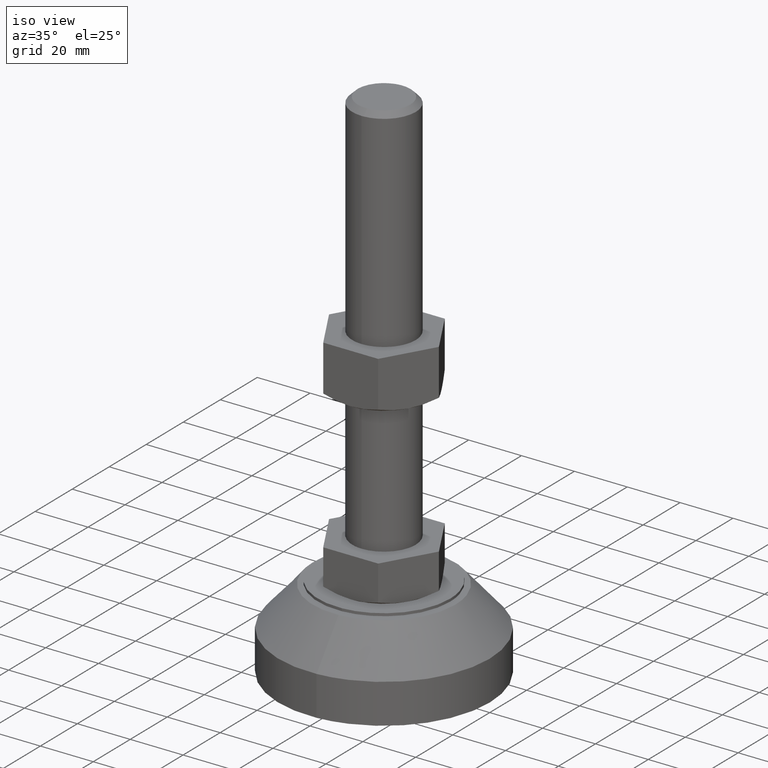
[diagram: clean part render]
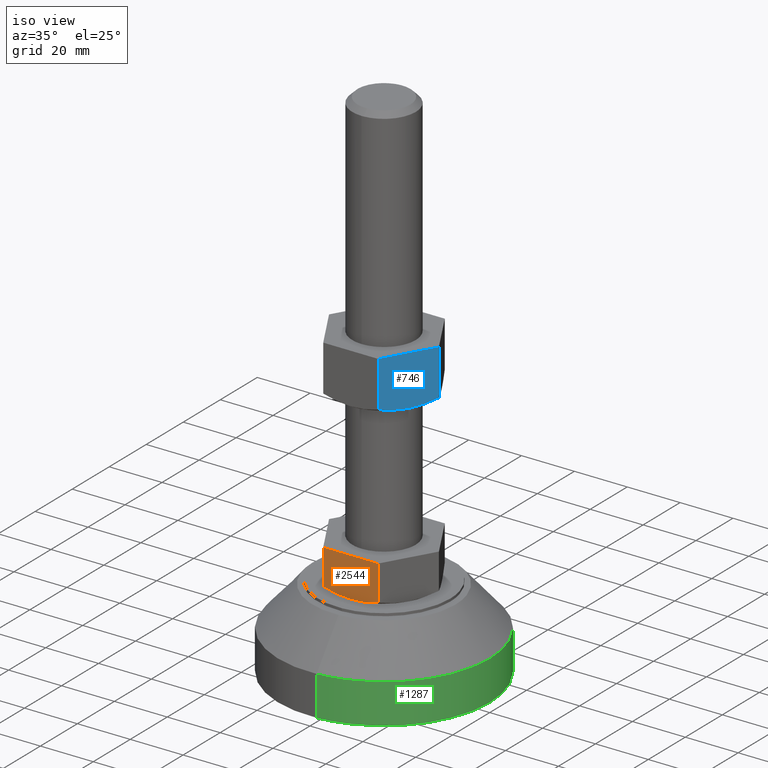
[diagram: same view with three faces highlighted in distinct colors, each labeled with its STEP entity id]
A machine part, iso view with three faces highlighted in distinct colors.
Their STEP definitions:

[orange] entity #2544 — the highlighted face is a freeform B-spline surface patch.
#2202=CARTESIAN_POINT('',(10.392304845413500,-18.0,46.500000000000000));
#2203=VERTEX_POINT('',#2202);
#2232=CARTESIAN_POINT('',(-10.392304845412919,-18.0,46.500000000000000));
#2233=VERTEX_POINT('',#2232);
#2239=CARTESIAN_POINT('',(-10.392304845412919,-18.0,46.500000000000000));
#2240=CARTESIAN_POINT('',(10.392304845413500,-18.0,46.500000000000000));
#2241=QUASI_UNIFORM_CURVE('',1,(#2239,#2240),.UNSPECIFIED.,.F.,.U.);
#2242=EDGE_CURVE('',#2233,#2203,#2241,.T.);
#2281=CARTESIAN_POINT('',(10.392304845915540,-18.0,33.107695154885853));
#2282=VERTEX_POINT('',#2281);
#2283=CARTESIAN_POINT('',(10.392304845413500,-18.0,46.500000000000000));
#2284=CARTESIAN_POINT('',(10.392304845915540,-18.0,33.107695154885853));
#2285=QUASI_UNIFORM_CURVE('',1,(#2283,#2284),.UNSPECIFIED.,.F.,.U.);
#2286=EDGE_CURVE('',#2203,#2282,#2285,.T.);
#2457=CARTESIAN_POINT('',(-10.392304845915540,-18.0,33.107695154885853));
#2458=VERTEX_POINT('',#2457);
#2474=CARTESIAN_POINT('',(-10.392304845412919,-18.0,46.500000000000000));
#2475=CARTESIAN_POINT('',(-10.392304845915540,-18.0,33.107695154885853));
#2476=QUASI_UNIFORM_CURVE('',1,(#2474,#2475),.UNSPECIFIED.,.F.,.U.);
#2477=EDGE_CURVE('',#2233,#2458,#2476,.T.);
#2499=CARTESIAN_POINT('',(-11.430496059737900,-18.0,30.750750029072911));
#2500=CARTESIAN_POINT('',(-11.430496059737900,-18.0,47.249250373258441));
#2501=CARTESIAN_POINT('',(11.430496617224581,-18.0,30.750750029072911));
#2502=CARTESIAN_POINT('',(11.430496617224570,-18.0,47.249250373258441));
#2503=B_SPLINE_SURFACE_WITH_KNOTS('',1,1,((#2499,#2501),(#2500,#2502)),.UNSPECIFIED.,.F.,.F.,.U.,(2,2),(2,2),(0.0,16.498500344185530),(0.0,22.860992676962478),.UNSPECIFIED.);
#2504=CARTESIAN_POINT('',(0.0,-18.0,31.500000000000000));
#2505=VERTEX_POINT('',#2504);
#2506=CARTESIAN_POINT('',(10.392304845915540,-18.0,33.107695154885853));
#2507=CARTESIAN_POINT('',(9.552365412714201,-17.999999999999989,32.865225525945192));
#2508=CARTESIAN_POINT('',(8.706885854444762,-17.999999999999989,32.643141576923583));
#2509=CARTESIAN_POINT('',(7.002191554892256,-18.0,32.249514242695000));
#2510=CARTESIAN_POINT('',(6.142968135351366,-18.0,32.078002790374732));
#2511=CARTESIAN_POINT('',(4.841642848456144,-18.0,31.866694927164890));
#2512=CARTESIAN_POINT('',(4.187855880466216,-18.0,31.772537393078089));
#2513=CARTESIAN_POINT('',(3.528980108452165,-18.0,31.697104838794321));
#2514=CARTESIAN_POINT('',(3.088556391147677,-18.0,31.651133435580299));
#2515=CARTESIAN_POINT('',(2.867507010807920,-17.999999999999989,31.630286684960030));
#2516=CARTESIAN_POINT('',(1.762606343972523,-18.0,31.537492186740920));
#2517=CARTESIAN_POINT('',(0.881461942123003,-18.0,31.500088341323650));
#2518=CARTESIAN_POINT('',(0.002086760034195,-18.0,31.500000052523699));
#2519=CARTESIAN_POINT('',(0.001043378373513,-18.0,31.500000000405709));
#2520=CARTESIAN_POINT('',(6.800530E-010,-18.0,31.500000000922029));
#2521=B_SPLINE_CURVE_WITH_KNOTS('',3,(#2506,#2507,#2508,#2509,#2510,#2511,#2512,#2513,#2514,#2515,#2516,#2517,#2518,#2519,#2520),.UNSPECIFIED.,.F.,.U.,(4,2,2,1,2,2,2,4),(0.499851510324410,0.624851510324410,0.749851510324410,0.812351510324410,0.843601510324410,0.874851510324410,0.999851510324410,1.000000000000000),.UNSPECIFIED.);
#2522=EDGE_CURVE('',#2282,#2505,#2521,.T.);
#2523=ORIENTED_EDGE('',*,*,#2522,.F.);
#2524=ORIENTED_EDGE('',*,*,#2286,.F.);
#2525=ORIENTED_EDGE('',*,*,#2242,.F.);
#2526=ORIENTED_EDGE('',*,*,#2477,.T.);
#2527=CARTESIAN_POINT('',(0.0,-18.0,31.500000000000000));
#2528=CARTESIAN_POINT('',(-0.877281739031200,-18.0,31.500000435064571));
#2529=CARTESIAN_POINT('',(-1.751758808972357,-18.0,31.537211237835219));
#2530=CARTESIAN_POINT('',(-3.496415527605407,-17.999999999999989,31.682490794184250));
#2531=CARTESIAN_POINT('',(-4.366592789590045,-18.0,31.790591212908399));
#2532=CARTESIAN_POINT('',(-5.668263561115735,-18.0,32.000439372685797));
#2533=CARTESIAN_POINT('',(-6.101556352838448,-18.0,32.078315508831018));
#2534=CARTESIAN_POINT('',(-6.967029944061030,-17.999999999999989,32.248820908382342));
#2535=CARTESIAN_POINT('',(-7.399391557765683,-18.0,32.341490212594657));
#2536=CARTESIAN_POINT('',(-8.693811692549845,-18.0,32.639624696497272));
#2537=CARTESIAN_POINT('',(-9.546941696184733,-18.0,32.863659833846008));
#2538=CARTESIAN_POINT('',(-10.392304845915470,-18.0,33.107695154886017));
#2539=B_SPLINE_CURVE_WITH_KNOTS('',3,(#2527,#2528,#2529,#2530,#2531,#2532,#2533,#2534,#2535,#2536,#2537,#2538),.UNSPECIFIED.,.F.,.U.,(4,2,2,2,2,4),(0.0,0.124851510293799,0.249851510293799,0.312351510293799,0.374851510293799,0.499851510293799),.UNSPECIFIED.);
#2540=EDGE_CURVE('',#2505,#2458,#2539,.T.);
#2541=ORIENTED_EDGE('',*,*,#2540,.F.);
#2542=EDGE_LOOP('',(#2523,#2524,#2525,#2526,#2541));
#2543=FACE_OUTER_BOUND('',#2542,.T.);
#2544=ADVANCED_FACE('',(#2543),#2503,.F.);

[blue] entity #746 — the highlighted face is a freeform B-spline surface patch.
#239=CARTESIAN_POINT('',(15.588457267900051,-8.999999999872999,97.500000000000000));
#240=VERTEX_POINT('',#239);
#407=CARTESIAN_POINT('',(20.784609691077652,-4.392649E-010,99.107695154885903));
#408=VERTEX_POINT('',#407);
#422=CARTESIAN_POINT('',(15.588457267900051,-8.999999999872999,97.500000000000000));
#423=CARTESIAN_POINT('',(15.695598621979020,-8.814425731524946,97.500000043512642));
#424=CARTESIAN_POINT('',(15.802898686852240,-8.628576567509091,97.502209877790818));
#425=CARTESIAN_POINT('',(16.021138819715439,-8.250573569139444,97.511217426488457));
#426=CARTESIAN_POINT('',(16.131910806480779,-8.058710860006508,97.518151183915947));
#427=CARTESIAN_POINT('',(16.463404994942149,-7.484546083177598,97.545891086845145));
#428=CARTESIAN_POINT('',(16.683633298884669,-7.103099471484447,97.573655188440242));
#429=CARTESIAN_POINT('',(17.342114434970028,-5.962576687958942,97.683556322936766));
#430=CARTESIAN_POINT('',(17.778158339073730,-5.207326491720633,97.792364395414793));
#431=CARTESIAN_POINT('',(19.078526894263991,-2.955022085566172,98.212522526829602));
#432=CARTESIAN_POINT('',(19.935118637307479,-1.471361665270852,98.617241266323049));
#433=CARTESIAN_POINT('',(20.784609690716639,-1.909833E-010,99.107695154677572));
#434=B_SPLINE_CURVE_WITH_KNOTS('',3,(#422,#423,#424,#425,#426,#427,#428,#429,#430,#431,#432,#433),.UNSPECIFIED.,.F.,.U.,(4,2,2,2,2,4),(0.500936633666372,0.531250000000000,0.562500000000000,0.625000000000000,0.750000000000000,1.0),.UNSPECIFIED.);
#435=EDGE_CURVE('',#240,#408,#434,.T.);
#454=CARTESIAN_POINT('',(10.392304845413500,-18.0,99.107695154885803));
#455=VERTEX_POINT('',#454);
#475=CARTESIAN_POINT('',(10.392304845413500,-18.0,99.107695154885803));
#476=CARTESIAN_POINT('',(11.240738174233730,-16.530470367648821,98.617851943954250));
#477=CARTESIAN_POINT('',(12.095357070327610,-15.050227018505790,98.214132543200080));
#478=CARTESIAN_POINT('',(13.390652697449299,-12.806709181509220,97.794670784436676));
#479=CARTESIAN_POINT('',(13.824651129440801,-12.055001846894729,97.685944140095245));
#480=CARTESIAN_POINT('',(14.697702244084571,-10.542832958727081,97.538862945875650));
#481=CARTESIAN_POINT('',(15.136759294111600,-9.782363840658965,97.500569204479021));
#482=CARTESIAN_POINT('',(15.581836433084490,-9.011467622670532,97.500002109278313));
#483=CARTESIAN_POINT('',(15.585146774871911,-9.005733942504291,97.500000000847081));
#484=CARTESIAN_POINT('',(15.588457268182511,-8.999999999892221,97.500000002125773));
#485=B_SPLINE_CURVE_WITH_KNOTS('',3,(#475,#476,#477,#478,#479,#480,#481,#482,#483,#484),.UNSPECIFIED.,.F.,.U.,(4,2,2,2,4),(0.0,0.250000000000000,0.375000000000000,0.500000000000000,0.500936633644529),.UNSPECIFIED.);
#486=EDGE_CURVE('',#455,#240,#485,.T.);
#594=CARTESIAN_POINT('',(10.392304845413500,-18.0,116.500000000000000));
#595=VERTEX_POINT('',#594);
#596=CARTESIAN_POINT('',(20.784609690826851,0.0,116.500000000000000));
#597=VERTEX_POINT('',#596);
#598=CARTESIAN_POINT('',(10.392304845413500,-18.0,116.500000000000000));
#599=CARTESIAN_POINT('',(20.784609690826851,0.0,116.500000000000000));
#600=QUASI_UNIFORM_CURVE('',1,(#598,#599),.UNSPECIFIED.,.F.,.U.);
#601=EDGE_CURVE('',#595,#597,#600,.T.);
#657=CARTESIAN_POINT('',(10.392304845413500,-18.0,99.107695154885803));
#658=CARTESIAN_POINT('',(10.392304845413500,-18.0,116.500000000000000));
#659=QUASI_UNIFORM_CURVE('',1,(#657,#658),.UNSPECIFIED.,.F.,.U.);
#660=EDGE_CURVE('',#455,#595,#659,.T.);
#722=CARTESIAN_POINT('',(20.784609691077652,-4.392649E-010,99.107695154885903));
#723=CARTESIAN_POINT('',(20.784609690826851,0.0,116.500000000000000));
#724=QUASI_UNIFORM_CURVE('',1,(#722,#723),.UNSPECIFIED.,.F.,.U.);
#725=EDGE_CURVE('',#408,#597,#724,.T.);
#734=CARTESIAN_POINT('',(9.873209238527515,-18.899099965112569,96.550950036825682));
#735=CARTESIAN_POINT('',(21.303705576456320,0.899100447910106,96.550950036825682));
#736=CARTESIAN_POINT('',(9.873209238527515,-18.899099965112569,117.449050472794000));
#737=CARTESIAN_POINT('',(21.303705576456320,0.899100447910106,117.449050472794000));
#738=B_SPLINE_SURFACE_WITH_KNOTS('',1,1,((#734,#736),(#735,#737)),.UNSPECIFIED.,.F.,.F.,.U.,(2,2),(2,2),(0.0,22.860992675857599),(0.0,20.898100435968360),.UNSPECIFIED.);
#739=ORIENTED_EDGE('',*,*,#660,.F.);
#740=ORIENTED_EDGE('',*,*,#486,.T.);
#741=ORIENTED_EDGE('',*,*,#435,.T.);
#742=ORIENTED_EDGE('',*,*,#725,.T.);
#743=ORIENTED_EDGE('',*,*,#601,.F.);
#744=EDGE_LOOP('',(#739,#740,#741,#742,#743));
#745=FACE_OUTER_BOUND('',#744,.T.);
#746=ADVANCED_FACE('',(#745),#738,.T.);

[green] entity #1287 — the highlighted face is a freeform B-spline surface patch.
#1150=CARTESIAN_POINT('',(-2.441895194581661,39.925394773959582,-5.614953E-014));
#1151=VERTEX_POINT('',#1150);
#1165=CARTESIAN_POINT('',(40.0,0.0,0.0));
#1166=VERTEX_POINT('',#1165);
#1167=CARTESIAN_POINT('',(-2.441895194581661,39.925394773959589,-5.614953E-014));
#1168=CARTESIAN_POINT('',(-1.222087273505633,39.999999999973447,-5.534264E-014));
#1169=CARTESIAN_POINT('',(1.598295E-012,39.999999999973852,-5.448490E-014));
#1170=CARTESIAN_POINT('',(40.000000000000774,39.999999999987324,-2.641013E-014));
#1171=CARTESIAN_POINT('',(40.0,0.0,0.0));
#1179=(BOUNDED_CURVE()B_SPLINE_CURVE(2,(#1167,#1168,#1169,#1170,#1171),.UNSPECIFIED.,.F.,.U.)B_SPLINE_CURVE_WITH_KNOTS((3,2,3),(0.239333162713308,0.250000000000000,0.500000000000000),.UNSPECIFIED.)CURVE()GEOMETRIC_REPRESENTATION_ITEM()RATIONAL_B_SPLINE_CURVE((0.976072471321820,0.987503022770166,1.0,0.707106781186548,1.0))REPRESENTATION_ITEM(''));
#1180=EDGE_CURVE('',#1151,#1166,#1179,.T.);
#1182=CARTESIAN_POINT('',(2.441895194581661,-39.925394773959582,-5.614953E-014));
#1183=VERTEX_POINT('',#1182);
#1184=CARTESIAN_POINT('',(40.0,0.0,0.0));
#1185=CARTESIAN_POINT('',(39.999999999999176,-37.628286475828965,-2.807476E-014));
#1186=CARTESIAN_POINT('',(2.441895194581661,-39.925394773959589,-5.614953E-014));
#1194=(BOUNDED_CURVE()B_SPLINE_CURVE(2,(#1184,#1185,#1186),.UNSPECIFIED.,.F.,.U.)B_SPLINE_CURVE_WITH_KNOTS((3,3),(0.500000000000000,0.739333162713308),.UNSPECIFIED.)CURVE()GEOMETRIC_REPRESENTATION_ITEM()RATIONAL_B_SPLINE_CURVE((1.0,0.719603758416382,0.976072471321820))REPRESENTATION_ITEM(''));
#1195=EDGE_CURVE('',#1166,#1183,#1194,.T.);
#1221=CARTESIAN_POINT('',(-2.441941581394279,39.925391936874668,15.374999999999719));
#1222=CARTESIAN_POINT('',(37.483450355480386,42.367333518268957,15.374999999999719));
#1223=CARTESIAN_POINT('',(39.925391936874668,2.441941581394279,15.374999999999719));
#1224=CARTESIAN_POINT('',(42.367333518268957,-37.483450355480386,15.374999999999719));
#1225=CARTESIAN_POINT('',(2.441941581394279,-39.925391936874668,15.374999999999719));
#1226=CARTESIAN_POINT('',(-2.441941581394279,39.925391936874668,-0.384375000000052));
#1227=CARTESIAN_POINT('',(37.483450355480386,42.367333518268957,-0.384375000000052));
#1228=CARTESIAN_POINT('',(39.925391936874668,2.441941581394279,-0.384375000000052));
#1229=CARTESIAN_POINT('',(42.367333518268957,-37.483450355480386,-0.384375000000052));
#1230=CARTESIAN_POINT('',(2.441941581394279,-39.925391936874668,-0.384375000000052));
#1238=(BOUNDED_SURFACE()B_SPLINE_SURFACE(2,1,((#1221,#1226),(#1222,#1227),(#1223,#1228),(#1224,#1229),(#1225,#1230)),.UNSPECIFIED.,.F.,.F.,.U.)B_SPLINE_SURFACE_WITH_KNOTS((3,2,3),(2,2),(0.0,66.274169979695188,132.548339959390400),(0.0,15.759374999999769),.UNSPECIFIED.)GEOMETRIC_REPRESENTATION_ITEM()RATIONAL_B_SPLINE_SURFACE(((1.0,1.0),(0.707106781186548,0.707106781186548),(1.0,1.0),(0.707106781186548,0.707106781186548),(1.0,1.0)))REPRESENTATION_ITEM('')SURFACE());
#1239=CARTESIAN_POINT('',(-2.441918102491334,39.925393332768117,15.000000046194581));
#1240=VERTEX_POINT('',#1239);
#1241=CARTESIAN_POINT('',(40.0,0.0,14.999999999999719));
#1242=VERTEX_POINT('',#1241);
#1243=CARTESIAN_POINT('',(-2.441918102491334,39.925393332768124,15.000000046194581));
#1244=CARTESIAN_POINT('',(-1.222110126344991,39.999998545366118,15.000000045530751));
#1245=CARTESIAN_POINT('',(-0.000022778092806,39.999998567911213,15.000000044825070));
#1246=CARTESIAN_POINT('',(39.999988958913733,39.999999305832326,15.000000021727633));
#1247=CARTESIAN_POINT('',(40.0,0.0,14.999999999999719));
#1255=(BOUNDED_CURVE()B_SPLINE_CURVE(2,(#1243,#1244,#1245,#1246,#1247),.UNSPECIFIED.,.F.,.U.)B_SPLINE_CURVE_WITH_KNOTS((3,2,3),(0.239333165159862,0.250000000000000,0.500000000000000),.UNSPECIFIED.)CURVE()GEOMETRIC_REPRESENTATION_ITEM()RATIONAL_B_SPLINE_CURVE((0.976072476565261,0.987503025636482,1.0,0.707106781186548,1.0))REPRESENTATION_ITEM(''));
#1256=EDGE_CURVE('',#1240,#1242,#1255,.T.);
#1257=ORIENTED_EDGE('',*,*,#1256,.T.);
#1258=CARTESIAN_POINT('',(2.441918102491338,-39.925393332768117,15.000000046194581));
#1259=VERTEX_POINT('',#1258);
#1260=CARTESIAN_POINT('',(40.0,0.0,14.999999999999719));
#1261=CARTESIAN_POINT('',(40.000011737006531,-37.628286272452478,15.000000023097158));
#1262=CARTESIAN_POINT('',(2.441918102491338,-39.925393332768124,15.000000046194582));
#1270=(BOUNDED_CURVE()B_SPLINE_CURVE(2,(#1260,#1261,#1262),.UNSPECIFIED.,.F.,.U.)B_SPLINE_CURVE_WITH_KNOTS((3,3),(0.500000000000000,0.739333165159862),.UNSPECIFIED.)CURVE()GEOMETRIC_REPRESENTATION_ITEM()RATIONAL_B_SPLINE_CURVE((1.0,0.719603755550065,0.976072476565261))REPRESENTATION_ITEM(''));
#1271=EDGE_CURVE('',#1242,#1259,#1270,.T.);
#1272=ORIENTED_EDGE('',*,*,#1271,.T.);
#1273=CARTESIAN_POINT('',(2.441918102491338,-39.925393332768117,15.000000046194581));
#1274=CARTESIAN_POINT('',(2.441895194581661,-39.925394773959582,-5.614953E-014));
#1275=QUASI_UNIFORM_CURVE('',1,(#1273,#1274),.UNSPECIFIED.,.F.,.U.);
#1276=EDGE_CURVE('',#1259,#1183,#1275,.T.);
#1277=ORIENTED_EDGE('',*,*,#1276,.T.);
#1278=ORIENTED_EDGE('',*,*,#1195,.F.);
#1279=ORIENTED_EDGE('',*,*,#1180,.F.);
#1280=CARTESIAN_POINT('',(-2.441918102491334,39.925393332768117,15.000000046194581));
#1281=CARTESIAN_POINT('',(-2.441895194581661,39.925394773959582,-5.614953E-014));
#1282=QUASI_UNIFORM_CURVE('',1,(#1280,#1281),.UNSPECIFIED.,.F.,.U.);
#1283=EDGE_CURVE('',#1240,#1151,#1282,.T.);
#1284=ORIENTED_EDGE('',*,*,#1283,.F.);
#1285=EDGE_LOOP('',(#1257,#1272,#1277,#1278,#1279,#1284));
#1286=FACE_OUTER_BOUND('',#1285,.T.);
#1287=ADVANCED_FACE('',(#1286),#1238,.T.);